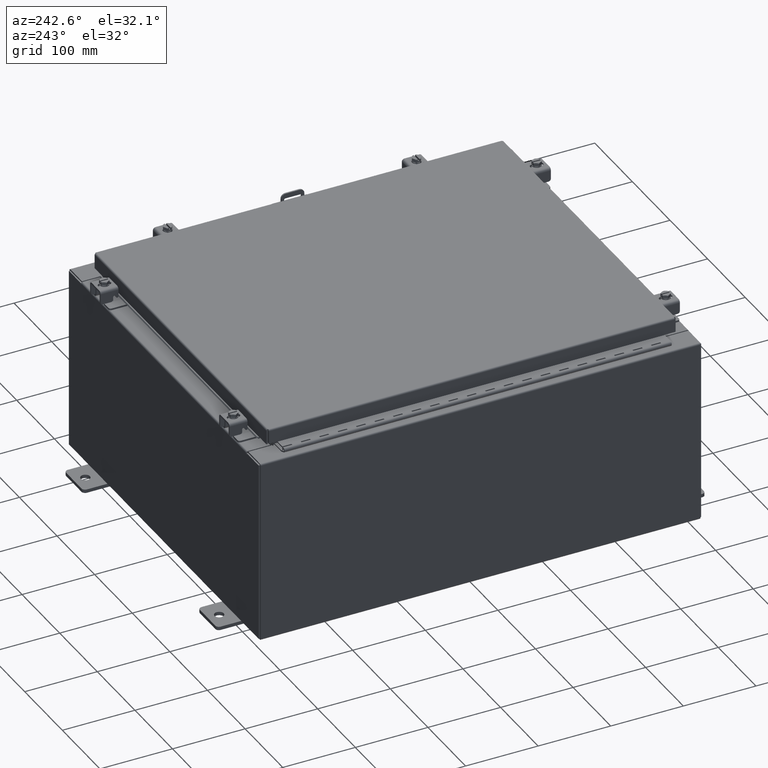
[diagram: clean part render]
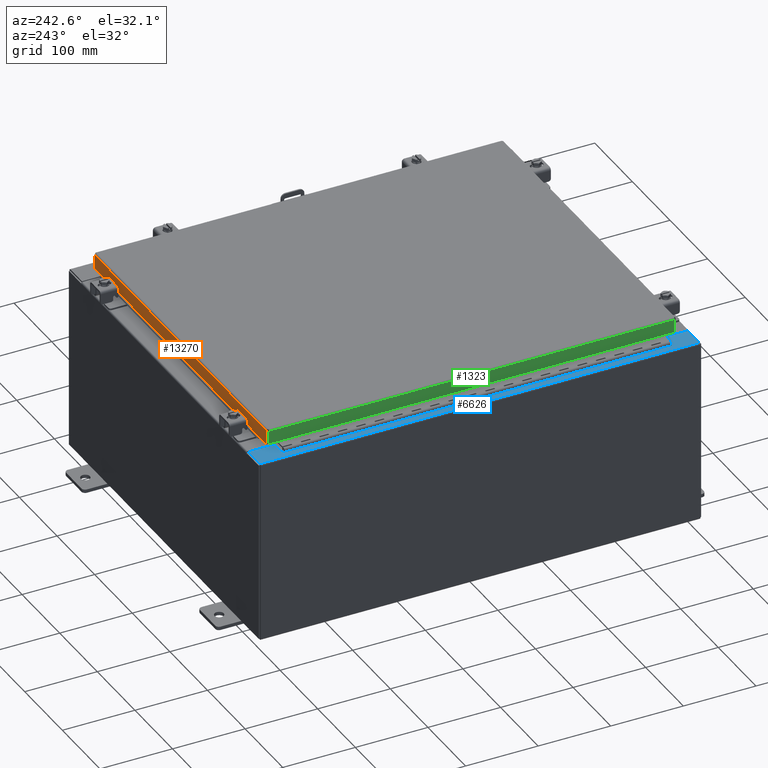
[diagram: same view with three faces highlighted in distinct colors, each labeled with its STEP entity id]
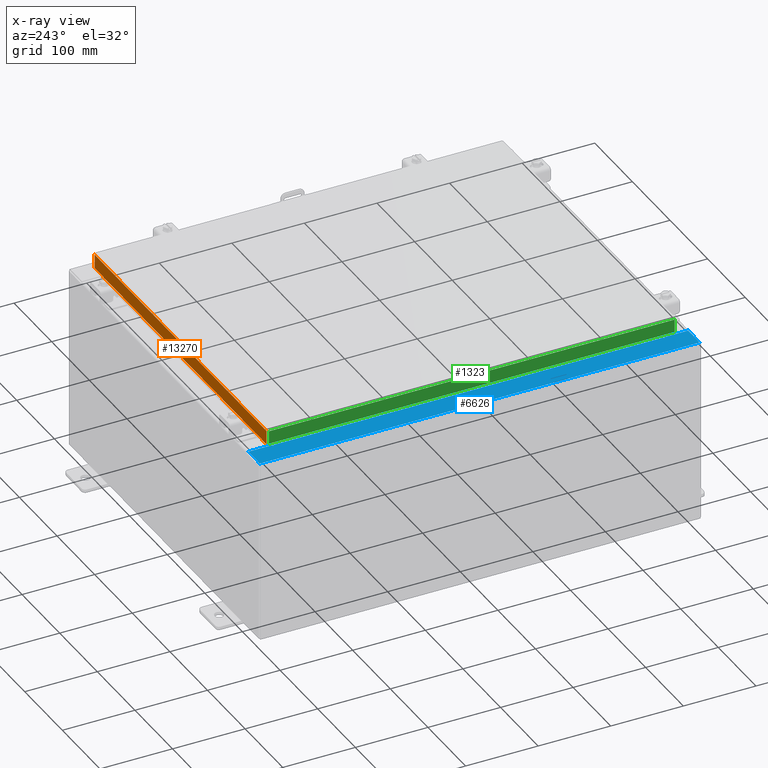
[diagram: x-ray of the same camera — body ghosted, the three highlighted faces saturated]
A machine part, auxiliary view with three faces highlighted in distinct colors.
The next image is the same camera in x-ray (body ghosted, the three faces saturated) — at least one of them is partly hidden behind the body in this view.
Their STEP definitions:

[orange] entity #13270 — the highlighted planar face has unit normal (0, -1, -0).
#338 = DIRECTION ( 'NONE',  ( -1.000000000000000000, -3.605222026166234800E-031, -9.826997386333231700E-046 ) ) ;
#1019 = LINE ( 'NONE', #29630, #26488 ) ;
#1179 = DIRECTION ( 'NONE',  ( 1.000000000000000000, -4.379057701015054300E-047, 1.278955053213606700E-016 ) ) ;
#1746 = VECTOR ( 'NONE', #338, 39.37007874015748100 ) ;
#1910 = ORIENTED_EDGE ( 'NONE', *, *, #23640, .F. ) ;
#2602 = ORIENTED_EDGE ( 'NONE', *, *, #25238, .F. ) ;
#4586 = VECTOR ( 'NONE', #24901, 39.37007874015748100 ) ;
#5461 = CARTESIAN_POINT ( 'NONE',  ( -9.077999999999999400, 11.09399999999999900, -0.08770000000000026400 ) ) ;
#6138 = CARTESIAN_POINT ( 'NONE',  ( 8.239157864376267100, 11.09399999999999800, -0.8500000000000043100 ) ) ;
#6333 = VECTOR ( 'NONE', #16314, 39.37007874015748100 ) ;
#6598 = ORIENTED_EDGE ( 'NONE', *, *, #29846, .F. ) ;
#7219 = DIRECTION ( 'NONE',  ( 3.605222026166233900E-031, -1.000000000000000000, -2.818880942772351900E-015 ) ) ;
#7699 = EDGE_CURVE ( 'NONE', #21102, #21246, #32570, .T. ) ;
#9829 = EDGE_LOOP ( 'NONE', ( #2602, #22500, #18536, #6598, #13549, #1910 ) ) ;
#10096 = LINE ( 'NONE', #5461, #1746 ) ;
#11151 = CARTESIAN_POINT ( 'NONE',  ( -8.239157864376265300, 11.09399999999999800, -0.8500000000000043100 ) ) ;
#11544 = VERTEX_POINT ( 'NONE', #14809 ) ;
#11694 = VECTOR ( 'NONE', #1179, 39.37007874015748100 ) ;
#11728 = DIRECTION ( 'NONE',  ( 1.000000000000000000, -4.379057701015054300E-047, 1.278955053213606700E-016 ) ) ;
#11829 = CARTESIAN_POINT ( 'NONE',  ( 8.989157864376267100, 11.09400000000000100, -0.8499999999999999800 ) ) ;
#12505 = LINE ( 'NONE', #26655, #11694 ) ;
#13270 = ADVANCED_FACE ( 'NONE', ( #32917 ), #32454, .F. ) ;
#13549 = ORIENTED_EDGE ( 'NONE', *, *, #21677, .F. ) ;
#14517 = EDGE_CURVE ( 'NONE', #19741, #21246, #1019, .T. ) ;
#14805 = CARTESIAN_POINT ( 'NONE',  ( -8.989157864376267100, 11.09399999999999900, -0.07470000000000015500 ) ) ;
#14809 = CARTESIAN_POINT ( 'NONE',  ( -8.989157864376267100, 11.09400000000000100, -0.8500000000000020900 ) ) ;
#16314 = DIRECTION ( 'NONE',  ( 0.0000000000000000000, 2.818880942772351900E-015, -1.000000000000000000 ) ) ;
#16421 = LINE ( 'NONE', #27174, #23146 ) ;
#18140 = LINE ( 'NONE', #14805, #4586 ) ;
#18391 = AXIS2_PLACEMENT_3D ( 'NONE', #22452, #7219, #24998 ) ;
#18536 = ORIENTED_EDGE ( 'NONE', *, *, #14517, .F. ) ;
#19741 = VERTEX_POINT ( 'NONE', #6138 ) ;
#21102 = VERTEX_POINT ( 'NONE', #29082 ) ;
#21246 = VERTEX_POINT ( 'NONE', #11829 ) ;
#21435 = CARTESIAN_POINT ( 'NONE',  ( -8.989157864376267100, 11.09399999999999900, -0.08770000000000026400 ) ) ;
#21677 = EDGE_CURVE ( 'NONE', #11544, #23363, #12505, .T. ) ;
#22049 = DIRECTION ( 'NONE',  ( 1.000000000000000000, -0.0000000000000000000, -0.0000000000000000000 ) ) ;
#22452 = CARTESIAN_POINT ( 'NONE',  ( 0.0000000000000000000, 11.09399999999999900, 3.059669752903974500E-014 ) ) ;
#22500 = ORIENTED_EDGE ( 'NONE', *, *, #7699, .T. ) ;
#23146 = VECTOR ( 'NONE', #22049, 39.37007874015748100 ) ;
#23363 = VERTEX_POINT ( 'NONE', #11151 ) ;
#23640 = EDGE_CURVE ( 'NONE', #24201, #11544, #18140, .T. ) ;
#24201 = VERTEX_POINT ( 'NONE', #21435 ) ;
#24901 = DIRECTION ( 'NONE',  ( -0.0000000000000000000, 2.818880942772351900E-015, -1.000000000000000000 ) ) ;
#24998 = DIRECTION ( 'NONE',  ( 0.0000000000000000000, 2.818880942772351900E-015, -1.000000000000000000 ) ) ;
#25238 = EDGE_CURVE ( 'NONE', #21102, #24201, #10096, .T. ) ;
#26488 = VECTOR ( 'NONE', #11728, 39.37007874015748100 ) ;
#26655 = CARTESIAN_POINT ( 'NONE',  ( -9.077999999999999400, 11.09400000000000100, -0.8500000000000020900 ) ) ;
#27174 = CARTESIAN_POINT ( 'NONE',  ( -8.239157864376267100, 11.09399999999999800, -0.8500000000000043100 ) ) ;
#29082 = CARTESIAN_POINT ( 'NONE',  ( 8.989157864376267100, 11.09399999999999900, -0.08770000000000026400 ) ) ;
#29630 = CARTESIAN_POINT ( 'NONE',  ( -9.077999999999999400, 11.09400000000000100, -0.8500000000000020900 ) ) ;
#29846 = EDGE_CURVE ( 'NONE', #23363, #19741, #16421, .T. ) ;
#31517 = CARTESIAN_POINT ( 'NONE',  ( 8.989157864376267100, 11.09399999999999900, 3.059669752903974500E-014 ) ) ;
#32454 = PLANE ( 'NONE',  #18391 ) ;
#32570 = LINE ( 'NONE', #31517, #6333 ) ;
#32917 = FACE_OUTER_BOUND ( 'NONE', #9829, .T. ) ;

[blue] entity #6626 — the highlighted planar face has unit normal (0, 0, -1).
#119 = CARTESIAN_POINT ( 'NONE',  ( -8.750050000000037200, -10.63109999999999300, 9.925300000000007100 ) ) ;
#550 = DIRECTION ( 'NONE',  ( -1.000000000000000000, -4.340572780399910900E-014, 0.0000000000000000000 ) ) ;
#1278 = VERTEX_POINT ( 'NONE', #28369 ) ;
#2010 = EDGE_CURVE ( 'NONE', #11987, #22376, #20829, .T. ) ;
#2249 = CARTESIAN_POINT ( 'NONE',  ( -8.699700000000035500, 0.0000000000000000000, 9.925300000000007100 ) ) ;
#2464 = EDGE_CURVE ( 'NONE', #14159, #17611, #19987, .T. ) ;
#2646 = LINE ( 'NONE', #7181, #16203 ) ;
#2824 = CARTESIAN_POINT ( 'NONE',  ( -8.712700000000035400, 10.59375000000000200, 9.925300000000007100 ) ) ;
#3912 = CARTESIAN_POINT ( 'NONE',  ( -8.750050000000037200, 10.61242500000000000, 9.925300000000007100 ) ) ;
#3947 = DIRECTION ( 'NONE',  ( -7.132762385546378400E-015, -0.0000000000000000000, 1.000000000000000000 ) ) ;
#4192 = VERTEX_POINT ( 'NONE', #19045 ) ;
#4255 = DIRECTION ( 'NONE',  ( -1.000000000000000000, -1.633973368572597200E-031, -7.132762385546378400E-015 ) ) ;
#4744 = CARTESIAN_POINT ( 'NONE',  ( -9.912300000000035600, -11.92529999999999600, 9.925299999999998200 ) ) ;
#4805 = ORIENTED_EDGE ( 'NONE', *, *, #12334, .T. ) ;
#5010 = LINE ( 'NONE', #16945, #31258 ) ;
#5968 = LINE ( 'NONE', #18551, #11915 ) ;
#6335 = ORIENTED_EDGE ( 'NONE', *, *, #25305, .F. ) ;
#6444 = VECTOR ( 'NONE', #24649, 39.37007874015748100 ) ;
#6474 = DIRECTION ( 'NONE',  ( 1.000000000000000000, 0.0000000000000000000, 0.0000000000000000000 ) ) ;
#6504 = ORIENTED_EDGE ( 'NONE', *, *, #19340, .T. ) ;
#6626 = ADVANCED_FACE ( 'NONE', ( #28283 ), #30463, .F. ) ;
#7059 = CARTESIAN_POINT ( 'NONE',  ( -8.750050000000037200, 10.59375000000000000, 9.925300000000007100 ) ) ;
#7181 = CARTESIAN_POINT ( 'NONE',  ( -8.712700000000035400, -10.59374999999999300, 9.925300000000007100 ) ) ;
#7696 = DIRECTION ( 'NONE',  ( 7.132762385546378400E-015, 0.0000000000000000000, -1.000000000000000000 ) ) ;
#7786 = EDGE_CURVE ( 'NONE', #22780, #11987, #17475, .T. ) ;
#8026 = VECTOR ( 'NONE', #9610, 39.37007874015748100 ) ;
#8372 = LINE ( 'NONE', #7059, #8026 ) ;
#8416 = DIRECTION ( 'NONE',  ( -6.427586101948161900E-031, 1.000000000000000000, -4.584644437783652100E-045 ) ) ;
#8883 = VECTOR ( 'NONE', #20655, 39.37007874015748100 ) ;
#9610 = DIRECTION ( 'NONE',  ( 1.000000000000000000, 0.0000000000000000000, 0.0000000000000000000 ) ) ;
#9629 = CIRCLE ( 'NONE', #31952, 0.01867499999999949400 ) ;
#11020 = ORIENTED_EDGE ( 'NONE', *, *, #27424, .F. ) ;
#11312 = VECTOR ( 'NONE', #28409, 39.37007874015748100 ) ;
#11353 = EDGE_CURVE ( 'NONE', #12201, #27978, #9629, .T. ) ;
#11915 = VECTOR ( 'NONE', #8416, 39.37007874015748100 ) ;
#11930 = CARTESIAN_POINT ( 'NONE',  ( -8.699700000000035500, -10.63109999999999300, 9.925300000000007100 ) ) ;
#11987 = VERTEX_POINT ( 'NONE', #12104 ) ;
#11992 = CARTESIAN_POINT ( 'NONE',  ( -4.979053734240802900E-014, -11.92529999999998000, 9.925300000000067500 ) ) ;
#12102 = VECTOR ( 'NONE', #20180, 39.37007874015748100 ) ;
#12104 = CARTESIAN_POINT ( 'NONE',  ( -8.750050000000037200, -10.63109999999999300, 9.925300000000005300 ) ) ;
#12201 = VERTEX_POINT ( 'NONE', #25750 ) ;
#12334 = EDGE_CURVE ( 'NONE', #14609, #1278, #5968, .T. ) ;
#12682 = ORIENTED_EDGE ( 'NONE', *, *, #11353, .F. ) ;
#12805 = DIRECTION ( 'NONE',  ( 1.000000000000000000, 0.0000000000000000000, 0.0000000000000000000 ) ) ;
#12896 = VECTOR ( 'NONE', #550, 39.37007874015748100 ) ;
#12920 = AXIS2_PLACEMENT_3D ( 'NONE', #19194, #3947, #21763 ) ;
#13286 = ORIENTED_EDGE ( 'NONE', *, *, #2010, .F. ) ;
#13342 = CARTESIAN_POINT ( 'NONE',  ( -8.699700000000035500, 10.63110000000000200, 9.925300000000007100 ) ) ;
#13932 = EDGE_CURVE ( 'NONE', #20706, #22780, #2646, .T. ) ;
#14159 = VERTEX_POINT ( 'NONE', #4744 ) ;
#14233 = CARTESIAN_POINT ( 'NONE',  ( -8.699700000000035500, -11.92529999999999500, 9.925300000000007100 ) ) ;
#14296 = ORIENTED_EDGE ( 'NONE', *, *, #2464, .T. ) ;
#14609 = VERTEX_POINT ( 'NONE', #22387 ) ;
#15703 = ORIENTED_EDGE ( 'NONE', *, *, #16767, .T. ) ;
#16188 = ORIENTED_EDGE ( 'NONE', *, *, #22020, .F. ) ;
#16203 = VECTOR ( 'NONE', #24956, 39.37007874015748100 ) ;
#16767 = EDGE_CURVE ( 'NONE', #17611, #22376, #32391, .T. ) ;
#16945 = CARTESIAN_POINT ( 'NONE',  ( -7.105562016124465400E-014, 11.92530000000000000, 9.925300000000067500 ) ) ;
#17285 = LINE ( 'NONE', #25823, #11312 ) ;
#17475 = CIRCLE ( 'NONE', #12920, 0.01867499999999949400 ) ;
#17611 = VERTEX_POINT ( 'NONE', #14233 ) ;
#17805 = CARTESIAN_POINT ( 'NONE',  ( -8.750050000000037200, 10.59375000000000000, 9.925300000000005300 ) ) ;
#18551 = CARTESIAN_POINT ( 'NONE',  ( -8.699700000000035500, 0.0000000000000000000, 9.925300000000007100 ) ) ;
#19045 = CARTESIAN_POINT ( 'NONE',  ( -8.712700000000035400, 10.59375000000000000, 9.925300000000007100 ) ) ;
#19194 = CARTESIAN_POINT ( 'NONE',  ( -8.750050000000037200, -10.61242499999999300, 9.925300000000007100 ) ) ;
#19340 = EDGE_CURVE ( 'NONE', #1278, #32016, #5010, .T. ) ;
#19987 = LINE ( 'NONE', #11992, #6444 ) ;
#20180 = DIRECTION ( 'NONE',  ( -6.427586101948161900E-031, 1.000000000000000000, -4.584644437783652100E-045 ) ) ;
#20248 = EDGE_LOOP ( 'NONE', ( #6335, #4805, #6504, #11020, #14296, #15703, #13286, #31589, #31186, #16188, #30460, #12682 ) ) ;
#20483 = LINE ( 'NONE', #13342, #12896 ) ;
#20655 = DIRECTION ( 'NONE',  ( -0.0000000000000000000, -1.000000000000000000, -0.0000000000000000000 ) ) ;
#20706 = VERTEX_POINT ( 'NONE', #24855 ) ;
#20829 = LINE ( 'NONE', #119, #25961 ) ;
#20845 = LINE ( 'NONE', #2824, #8883 ) ;
#21716 = DIRECTION ( 'NONE',  ( -7.132762385546378400E-015, -0.0000000000000000000, 1.000000000000000000 ) ) ;
#21763 = DIRECTION ( 'NONE',  ( 1.000000000000000000, 0.0000000000000000000, 0.0000000000000000000 ) ) ;
#22020 = EDGE_CURVE ( 'NONE', #4192, #20706, #20845, .T. ) ;
#22376 = VERTEX_POINT ( 'NONE', #11930 ) ;
#22387 = CARTESIAN_POINT ( 'NONE',  ( -8.699700000000035500, 10.63110000000000200, 9.925300000000007100 ) ) ;
#22780 = VERTEX_POINT ( 'NONE', #23601 ) ;
#22896 = CARTESIAN_POINT ( 'NONE',  ( -7.105562016124465400E-014, 0.0000000000000000000, 9.925300000000067500 ) ) ;
#23601 = CARTESIAN_POINT ( 'NONE',  ( -8.750050000000037200, -10.59374999999999300, 9.925300000000005300 ) ) ;
#24649 = DIRECTION ( 'NONE',  ( 1.000000000000000000, 1.783190596386595000E-015, 7.132762385546378400E-015 ) ) ;
#24855 = CARTESIAN_POINT ( 'NONE',  ( -8.712700000000035400, -10.59374999999999300, 9.925300000000007100 ) ) ;
#24956 = DIRECTION ( 'NONE',  ( -1.000000000000000000, 0.0000000000000000000, 0.0000000000000000000 ) ) ;
#25305 = EDGE_CURVE ( 'NONE', #14609, #12201, #20483, .T. ) ;
#25457 = DIRECTION ( 'NONE',  ( -1.000000000000000000, 0.0000000000000000000, -7.132762385546378400E-015 ) ) ;
#25750 = CARTESIAN_POINT ( 'NONE',  ( -8.750050000000037200, 10.63109999999999800, 9.925300000000005300 ) ) ;
#25823 = CARTESIAN_POINT ( 'NONE',  ( -9.912300000000035600, 11.92530000000000000, 9.925299999999998200 ) ) ;
#25961 = VECTOR ( 'NONE', #12805, 39.37007874015748100 ) ;
#27424 = EDGE_CURVE ( 'NONE', #14159, #32016, #17285, .T. ) ;
#27978 = VERTEX_POINT ( 'NONE', #17805 ) ;
#28283 = FACE_OUTER_BOUND ( 'NONE', #20248, .T. ) ;
#28369 = CARTESIAN_POINT ( 'NONE',  ( -8.699700000000035500, 11.92530000000000000, 9.925300000000007100 ) ) ;
#28409 = DIRECTION ( 'NONE',  ( -0.0000000000000000000, 1.000000000000000000, -0.0000000000000000000 ) ) ;
#30460 = ORIENTED_EDGE ( 'NONE', *, *, #31159, .F. ) ;
#30463 = PLANE ( 'NONE',  #32903 ) ;
#31159 = EDGE_CURVE ( 'NONE', #27978, #4192, #8372, .T. ) ;
#31186 = ORIENTED_EDGE ( 'NONE', *, *, #13932, .F. ) ;
#31258 = VECTOR ( 'NONE', #4255, 39.37007874015748100 ) ;
#31589 = ORIENTED_EDGE ( 'NONE', *, *, #7786, .F. ) ;
#31952 = AXIS2_PLACEMENT_3D ( 'NONE', #3912, #21716, #6474 ) ;
#32016 = VERTEX_POINT ( 'NONE', #32788 ) ;
#32391 = LINE ( 'NONE', #2249, #12102 ) ;
#32788 = CARTESIAN_POINT ( 'NONE',  ( -9.912300000000035600, 11.92530000000000000, 9.925299999999998200 ) ) ;
#32903 = AXIS2_PLACEMENT_3D ( 'NONE', #22896, #7696, #25457 ) ;

[green] entity #1323 — the highlighted planar face has unit normal (1, 0, -0).
#271 = EDGE_LOOP ( 'NONE', ( #20036, #23049, #26559, #24774 ) ) ;
#436 = CARTESIAN_POINT ( 'NONE',  ( -9.077999999999999400, 0.0000000000000000000, 2.841121913410833900E-014 ) ) ;
#541 = DIRECTION ( 'NONE',  ( -3.034122441942816500E-015, 0.0000000000000000000, -1.000000000000000000 ) ) ;
#805 = DIRECTION ( 'NONE',  ( 4.379057701015054300E-047, 1.000000000000000000, 1.231227687788112300E-016 ) ) ;
#1323 = ADVANCED_FACE ( 'NONE', ( #17938 ), #13231, .F. ) ;
#2524 = LINE ( 'NONE', #20059, #29592 ) ;
#4188 = LINE ( 'NONE', #32427, #30438 ) ;
#4801 = DIRECTION ( 'NONE',  ( -3.034122441942816500E-015, 6.982962677686265900E-015, -1.000000000000000000 ) ) ;
#9632 = DIRECTION ( 'NONE',  ( 3.735695558659274900E-031, -1.000000000000000000, -1.101212895818006000E-045 ) ) ;
#9911 = CARTESIAN_POINT ( 'NONE',  ( -9.077999999999999400, -11.00515786437626900, -0.08770000000000026400 ) ) ;
#11254 = EDGE_CURVE ( 'NONE', #20192, #29559, #13626, .T. ) ;
#11733 = CARTESIAN_POINT ( 'NONE',  ( -9.077999999999999400, 11.00515786437626900, -0.08770000000000026400 ) ) ;
#12457 = CARTESIAN_POINT ( 'NONE',  ( -9.078000000000001200, -11.00515786437626700, -0.7950000000000007100 ) ) ;
#13231 = PLANE ( 'NONE',  #26382 ) ;
#13593 = CARTESIAN_POINT ( 'NONE',  ( -9.078000000000001200, -11.09400000000000100, -0.7950000000000007100 ) ) ;
#13626 = LINE ( 'NONE', #13593, #26344 ) ;
#15808 = DIRECTION ( 'NONE',  ( 1.000000000000000000, 3.735695558659274400E-031, -3.034122441942816500E-015 ) ) ;
#16015 = CARTESIAN_POINT ( 'NONE',  ( -9.078000000000001200, 11.00515786437627100, -0.7949999999999962700 ) ) ;
#16569 = VERTEX_POINT ( 'NONE', #11733 ) ;
#16740 = VERTEX_POINT ( 'NONE', #9911 ) ;
#17106 = EDGE_CURVE ( 'NONE', #16740, #20192, #2524, .T. ) ;
#17938 = FACE_OUTER_BOUND ( 'NONE', #271, .T. ) ;
#19302 = DIRECTION ( 'NONE',  ( -3.034122441942816500E-015, 6.982962677686265900E-015, -1.000000000000000000 ) ) ;
#19378 = VECTOR ( 'NONE', #19302, 39.37007874015748100 ) ;
#20036 = ORIENTED_EDGE ( 'NONE', *, *, #20689, .F. ) ;
#20059 = CARTESIAN_POINT ( 'NONE',  ( -9.077999999999999400, -11.00515786437627100, -0.07470000000000015500 ) ) ;
#20192 = VERTEX_POINT ( 'NONE', #12457 ) ;
#20689 = EDGE_CURVE ( 'NONE', #16569, #16740, #4188, .T. ) ;
#22813 = EDGE_CURVE ( 'NONE', #16569, #29559, #32878, .T. ) ;
#23049 = ORIENTED_EDGE ( 'NONE', *, *, #22813, .T. ) ;
#24774 = ORIENTED_EDGE ( 'NONE', *, *, #17106, .F. ) ;
#26344 = VECTOR ( 'NONE', #805, 39.37007874015748100 ) ;
#26382 = AXIS2_PLACEMENT_3D ( 'NONE', #436, #15808, #541 ) ;
#26559 = ORIENTED_EDGE ( 'NONE', *, *, #11254, .F. ) ;
#29411 = CARTESIAN_POINT ( 'NONE',  ( -9.077999999999999400, 11.00515786437626700, 1.049029629567077100E-013 ) ) ;
#29559 = VERTEX_POINT ( 'NONE', #16015 ) ;
#29592 = VECTOR ( 'NONE', #4801, 39.37007874015748100 ) ;
#30438 = VECTOR ( 'NONE', #9632, 39.37007874015748100 ) ;
#32427 = CARTESIAN_POINT ( 'NONE',  ( -9.077999999999999400, -11.09400000000000100, -0.08770000000000026400 ) ) ;
#32878 = LINE ( 'NONE', #29411, #19378 ) ;